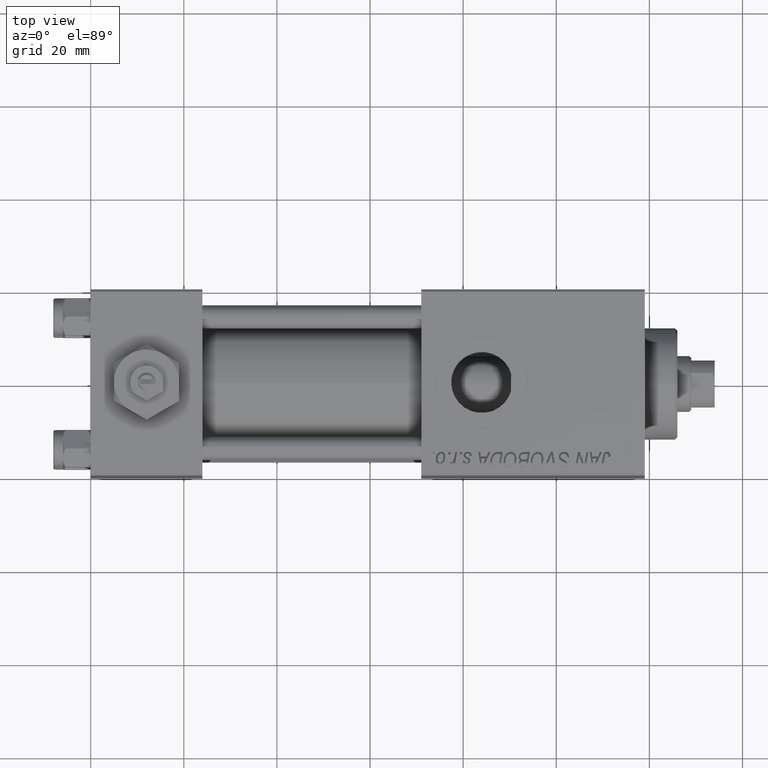
[diagram: clean part render]
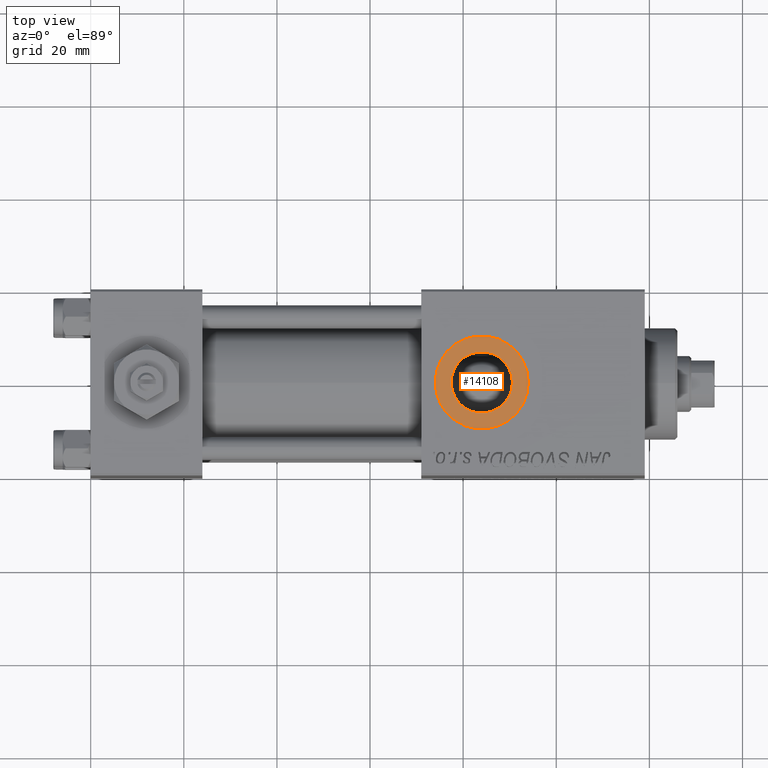
[diagram: same view with one face highlighted and labeled with its STEP entity id]
A machine part, top view. The second image highlights one B-rep face of the part: STEP entity #14108.
In plain terms, the highlighted planar face has unit normal (0, 0, 1).
Its self-contained STEP definition (entity closure, byte-faithful):
#649 = CIRCLE ( 'NONE', #44429, 10.00000000000154898 ) ;
#1142 = DIRECTION ( 'NONE',  ( 1.000000000000000000, 0.000000000000000000, 0.000000000000000000 ) ) ;
#2253 = ORIENTED_EDGE ( 'NONE', *, *, #13147, .T. ) ;
#5032 = PLANE ( 'NONE',  #39909 ) ;
#5542 = AXIS2_PLACEMENT_3D ( 'NONE', #28853, #12764, #48625 ) ;
#8745 = CARTESIAN_POINT ( 'NONE',  ( 84.00000000000000000, -1.734723475976806897E-15, 19.80000000000000071 ) ) ;
#11124 = EDGE_CURVE ( 'NONE', #45431, #22712, #25488, .T. ) ;
#11216 = EDGE_LOOP ( 'NONE', ( #21230, #31018 ) ) ;
#11731 = EDGE_LOOP ( 'NONE', ( #34439, #2253 ) ) ;
#12764 = DIRECTION ( 'NONE',  ( -0.000000000000000000, -0.000000000000000000, -1.000000000000000000 ) ) ;
#13147 = EDGE_CURVE ( 'NONE', #38908, #21279, #40722, .T. ) ;
#14108 = ADVANCED_FACE ( 'NONE', ( #41688, #20887 ), #5032, .T. ) ;
#16979 = DIRECTION ( 'NONE',  ( 0.000000000000000000, 0.000000000000000000, 1.000000000000000000 ) ) ;
#20747 = CARTESIAN_POINT ( 'NONE',  ( 73.99999999999845102, -5.100766768292640183E-16, 19.80000000000000071 ) ) ;
#20887 = FACE_OUTER_BOUND ( 'NONE', #11216, .T. ) ;
#21137 = DIRECTION ( 'NONE',  ( 0.000000000000000000, 0.000000000000000000, 1.000000000000000000 ) ) ;
#21230 = ORIENTED_EDGE ( 'NONE', *, *, #11124, .T. ) ;
#21279 = VERTEX_POINT ( 'NONE', #29019 ) ;
#22712 = VERTEX_POINT ( 'NONE', #20747 ) ;
#24433 = CARTESIAN_POINT ( 'NONE',  ( 90.58000000000154728, -9.289058821376599092E-16, 19.80000000000000071 ) ) ;
#25488 = CIRCLE ( 'NONE', #43223, 10.00000000000154898 ) ;
#25609 = AXIS2_PLACEMENT_3D ( 'NONE', #47518, #51208, #27491 ) ;
#27491 = DIRECTION ( 'NONE',  ( 1.000000000000000000, 0.000000000000000000, 0.000000000000000000 ) ) ;
#28853 = CARTESIAN_POINT ( 'NONE',  ( 84.00000000000000000, -1.734723475976806897E-15, 19.80000000000000071 ) ) ;
#29019 = CARTESIAN_POINT ( 'NONE',  ( 77.41999999999846693, -1.734723475976806897E-15, 19.80000000000000071 ) ) ;
#29039 = CARTESIAN_POINT ( 'NONE',  ( 94.00000000000154898, -1.734723475976806897E-15, 19.80000000000000071 ) ) ;
#31018 = ORIENTED_EDGE ( 'NONE', *, *, #41340, .T. ) ;
#33304 = DIRECTION ( 'NONE',  ( 1.000000000000000000, 0.000000000000000000, 0.000000000000000000 ) ) ;
#34439 = ORIENTED_EDGE ( 'NONE', *, *, #48126, .T. ) ;
#37211 = DIRECTION ( 'NONE',  ( 1.000000000000000000, 0.000000000000000000, -0.000000000000000000 ) ) ;
#38908 = VERTEX_POINT ( 'NONE', #24433 ) ;
#39909 = AXIS2_PLACEMENT_3D ( 'NONE', #8745, #21137, #37211 ) ;
#40712 = CARTESIAN_POINT ( 'NONE',  ( 84.00000000000000000, -1.734723475976806897E-15, 19.80000000000000071 ) ) ;
#40722 = CIRCLE ( 'NONE', #25609, 6.580000000001542837 ) ;
#40887 = CIRCLE ( 'NONE', #5542, 6.580000000001542837 ) ;
#41340 = EDGE_CURVE ( 'NONE', #22712, #45431, #649, .T. ) ;
#41688 = FACE_BOUND ( 'NONE', #11731, .T. ) ;
#42001 = CARTESIAN_POINT ( 'NONE',  ( 84.00000000000000000, -1.734723475976806897E-15, 19.80000000000000071 ) ) ;
#43223 = AXIS2_PLACEMENT_3D ( 'NONE', #42001, #50168, #33304 ) ;
#44429 = AXIS2_PLACEMENT_3D ( 'NONE', #40712, #16979, #1142 ) ;
#45431 = VERTEX_POINT ( 'NONE', #29039 ) ;
#47518 = CARTESIAN_POINT ( 'NONE',  ( 84.00000000000000000, -1.734723475976806897E-15, 19.80000000000000071 ) ) ;
#48126 = EDGE_CURVE ( 'NONE', #21279, #38908, #40887, .T. ) ;
#48625 = DIRECTION ( 'NONE',  ( 1.000000000000000000, 0.000000000000000000, 0.000000000000000000 ) ) ;
#50168 = DIRECTION ( 'NONE',  ( 0.000000000000000000, 0.000000000000000000, 1.000000000000000000 ) ) ;
#51208 = DIRECTION ( 'NONE',  ( -0.000000000000000000, -0.000000000000000000, -1.000000000000000000 ) ) ;